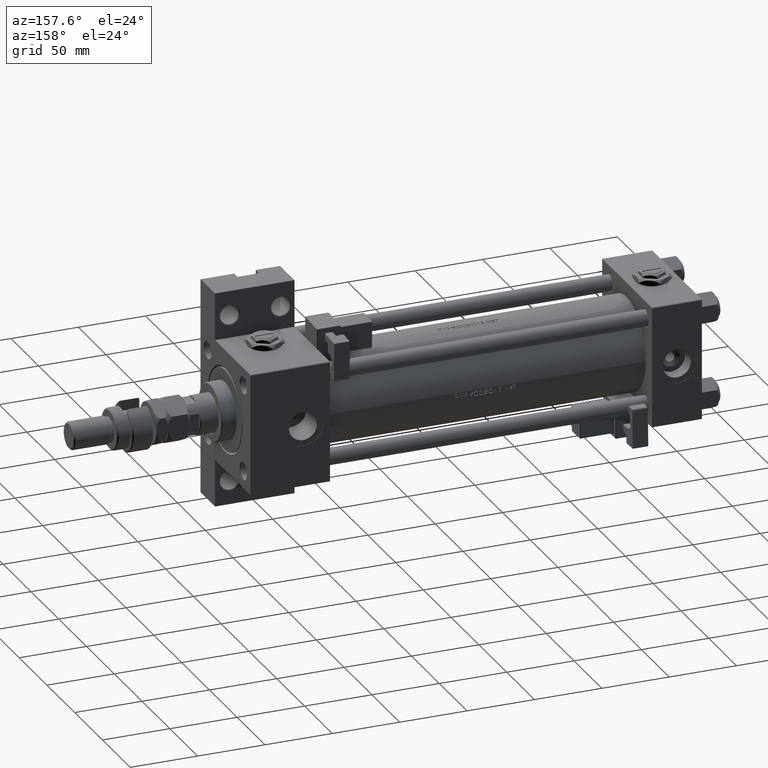
[diagram: clean part render]
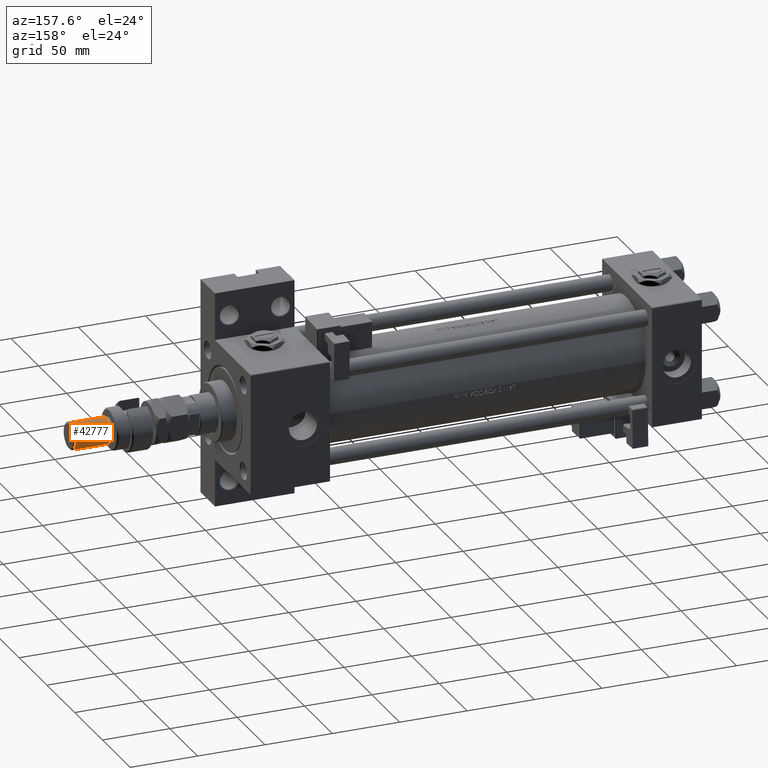
[diagram: same view with one face highlighted and labeled with its STEP entity id]
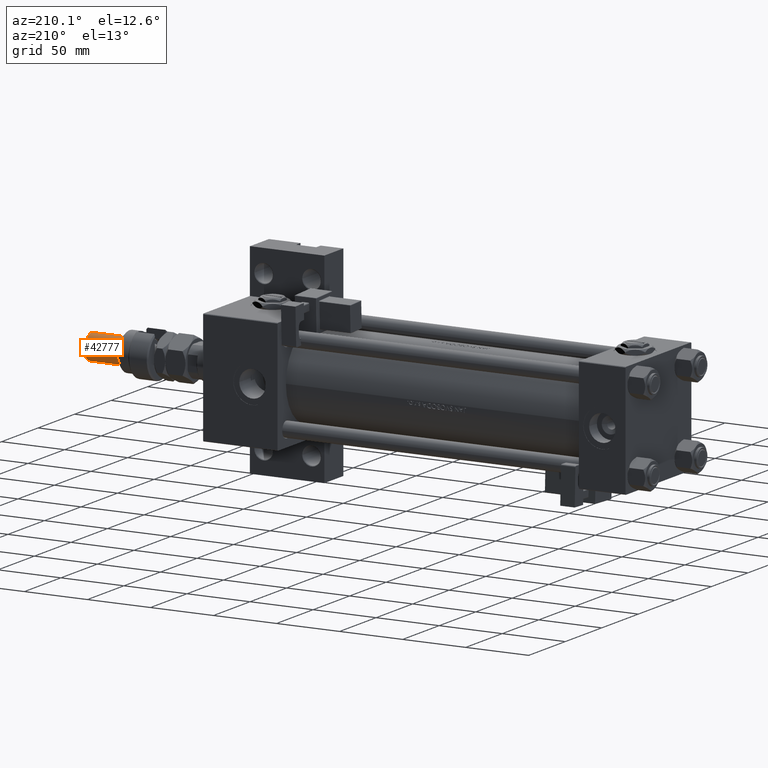
[diagram: same view with one face highlighted and labeled with its STEP entity id]
A machine part, auxiliary view. The second image highlights one B-rep face of the part: STEP entity #42777.
A second angle (auxiliary view) of the same face is appended — the face is thin or edge-on in the first view.
In plain terms, the highlighted cylindrical surface (edge-blend (fillet) strip) has radius 10 mm, axis along (-1, -0, 0).
Its self-contained STEP definition (entity closure, byte-faithful):
#281 = CARTESIAN_POINT ( 'NONE',  ( 10.00000000000000000, 1.224646799147353256E-15, 56.00000000000000711 ) ) ;
#1735 = CARTESIAN_POINT ( 'NONE',  ( -10.00000000000000000, 0.000000000000000000, 56.00000000000000711 ) ) ;
#2101 = CARTESIAN_POINT ( 'NONE',  ( -10.00000000000000000, 0.000000000000000000, 54.99999999999998579 ) ) ;
#3842 = EDGE_CURVE ( 'NONE', #43774, #22644, #44100, .T. ) ;
#5629 = DIRECTION ( 'NONE',  ( -0.000000000000000000, -0.000000000000000000, -1.000000000000000000 ) ) ;
#6926 = VECTOR ( 'NONE', #46786, 1000.000000000000000 ) ;
#9517 = CIRCLE ( 'NONE', #29007, 10.00000000000000000 ) ;
#14571 = DIRECTION ( 'NONE',  ( 1.000000000000000000, 0.000000000000000000, 0.000000000000000000 ) ) ;
#15944 = CARTESIAN_POINT ( 'NONE',  ( 0.000000000000000000, 0.000000000000000000, 54.99999999999998579 ) ) ;
#22354 = EDGE_CURVE ( 'NONE', #32787, #22644, #9517, .T. ) ;
#22644 = VERTEX_POINT ( 'NONE', #51057 ) ;
#23866 = CYLINDRICAL_SURFACE ( 'NONE', #25166, 10.00000000000000000 ) ;
#24621 = ORIENTED_EDGE ( 'NONE', *, *, #27792, .T. ) ;
#25166 = AXIS2_PLACEMENT_3D ( 'NONE', #48190, #53458, #36023 ) ;
#26405 = CARTESIAN_POINT ( 'NONE',  ( 10.00000000000000000, 1.224646799147353256E-15, 29.00000000000000711 ) ) ;
#26439 = VECTOR ( 'NONE', #5629, 1000.000000000000000 ) ;
#27250 = VERTEX_POINT ( 'NONE', #38632 ) ;
#27392 = CIRCLE ( 'NONE', #31821, 10.00000000000000000 ) ;
#27792 = EDGE_CURVE ( 'NONE', #27250, #32787, #29923, .T. ) ;
#28142 = DIRECTION ( 'NONE',  ( -0.000000000000000000, -0.000000000000000000, 1.000000000000000000 ) ) ;
#29007 = AXIS2_PLACEMENT_3D ( 'NONE', #40043, #28142, #14571 ) ;
#29923 = LINE ( 'NONE', #281, #6926 ) ;
#30726 = EDGE_CURVE ( 'NONE', #43774, #27250, #27392, .T. ) ;
#31821 = AXIS2_PLACEMENT_3D ( 'NONE', #15944, #49965, #33096 ) ;
#32156 = FACE_OUTER_BOUND ( 'NONE', #38038, .T. ) ;
#32787 = VERTEX_POINT ( 'NONE', #26405 ) ;
#33096 = DIRECTION ( 'NONE',  ( 1.000000000000000000, 0.000000000000000000, 0.000000000000000000 ) ) ;
#34303 = ORIENTED_EDGE ( 'NONE', *, *, #3842, .F. ) ;
#36023 = DIRECTION ( 'NONE',  ( -1.000000000000000000, 0.000000000000000000, 0.000000000000000000 ) ) ;
#38038 = EDGE_LOOP ( 'NONE', ( #52514, #24621, #48430, #34303 ) ) ;
#38632 = CARTESIAN_POINT ( 'NONE',  ( 10.00000000000000000, 1.224646799147353256E-15, 54.99999999999998579 ) ) ;
#40043 = CARTESIAN_POINT ( 'NONE',  ( 0.000000000000000000, 0.000000000000000000, 29.00000000000000711 ) ) ;
#42777 = ADVANCED_FACE ( 'NONE', ( #32156 ), #23866, .T. ) ;
#43774 = VERTEX_POINT ( 'NONE', #2101 ) ;
#44100 = LINE ( 'NONE', #1735, #26439 ) ;
#46786 = DIRECTION ( 'NONE',  ( -0.000000000000000000, -0.000000000000000000, -1.000000000000000000 ) ) ;
#48190 = CARTESIAN_POINT ( 'NONE',  ( 0.000000000000000000, 0.000000000000000000, 56.00000000000000711 ) ) ;
#48430 = ORIENTED_EDGE ( 'NONE', *, *, #22354, .T. ) ;
#49965 = DIRECTION ( 'NONE',  ( 0.000000000000000000, 0.000000000000000000, -1.000000000000000000 ) ) ;
#51057 = CARTESIAN_POINT ( 'NONE',  ( -10.00000000000000000, 0.000000000000000000, 29.00000000000000711 ) ) ;
#52514 = ORIENTED_EDGE ( 'NONE', *, *, #30726, .T. ) ;
#53458 = DIRECTION ( 'NONE',  ( -0.000000000000000000, -0.000000000000000000, -1.000000000000000000 ) ) ;